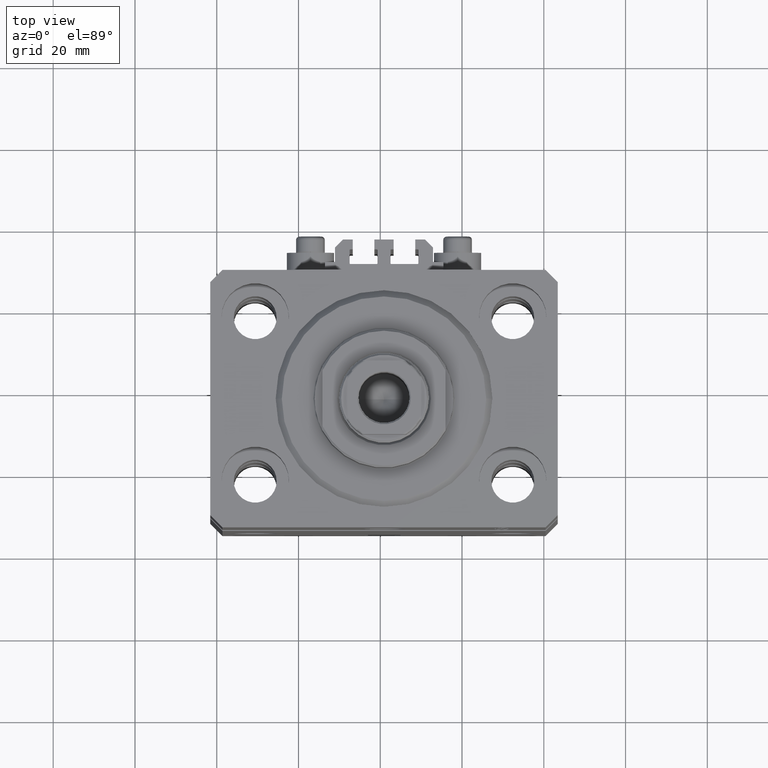
[diagram: clean part render]
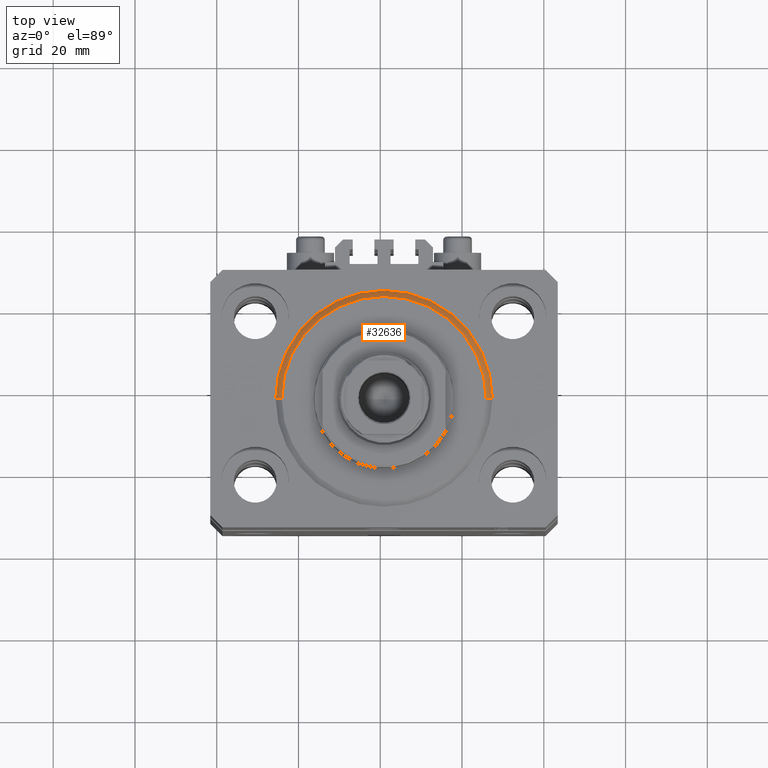
[diagram: same view with one face highlighted and labeled with its STEP entity id]
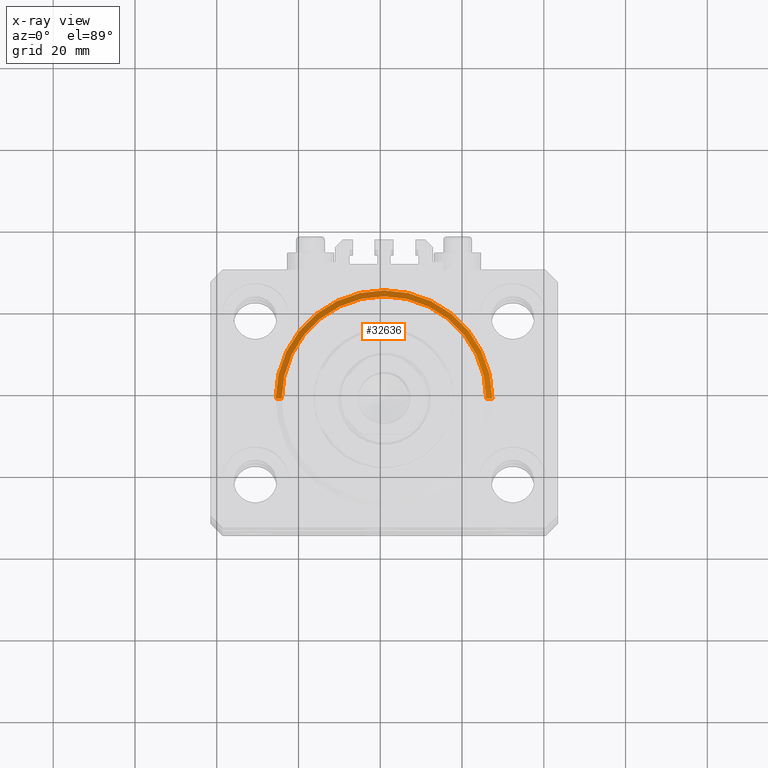
[diagram: x-ray of the same camera — body ghosted, the highlighted face saturated]
A machine part, top view. The second image highlights one B-rep face of the part: STEP entity #32636.
The next image is the same camera in x-ray: the body ghosted, the highlighted face saturated — about 0% of this face is hidden behind the body in this view.
In plain terms, the highlighted conical surface has half-angle 45 deg.
Its self-contained STEP definition (entity closure, byte-faithful):
#89 = CARTESIAN_POINT ( 'NONE',  ( 26.50000000000000355, 0.000000000000000000, 1.500000000000018652 ) ) ;
#881 = ORIENTED_EDGE ( 'NONE', *, *, #36087, .F. ) ;
#2096 = DIRECTION ( 'NONE',  ( 1.000000000000000000, 0.000000000000000000, 0.000000000000000000 ) ) ;
#2946 = AXIS2_PLACEMENT_3D ( 'NONE', #12922, #5546, #2096 ) ;
#3824 = ORIENTED_EDGE ( 'NONE', *, *, #11839, .F. ) ;
#3941 = CARTESIAN_POINT ( 'NONE',  ( -26.50000000000000355, 3.245314017740486554E-15, 1.500000000000018652 ) ) ;
#5546 = DIRECTION ( 'NONE',  ( -0.000000000000000000, -0.000000000000000000, 1.000000000000000000 ) ) ;
#6875 = DIRECTION ( 'NONE',  ( -0.000000000000000000, -0.000000000000000000, -1.000000000000000000 ) ) ;
#7454 = LINE ( 'NONE', #89, #16838 ) ;
#7533 = EDGE_LOOP ( 'NONE', ( #26176, #9174, #881, #3824 ) ) ;
#9174 = ORIENTED_EDGE ( 'NONE', *, *, #36737, .T. ) ;
#9203 = CARTESIAN_POINT ( 'NONE',  ( 24.99999999999998224, 0.000000000000000000, 0.000000000000000000 ) ) ;
#9299 = CARTESIAN_POINT ( 'NONE',  ( -24.99999999999998224, 3.153465507804433615E-15, 0.000000000000000000 ) ) ;
#11839 = EDGE_CURVE ( 'NONE', #44023, #39242, #7454, .T. ) ;
#12922 = CARTESIAN_POINT ( 'NONE',  ( 0.000000000000000000, 0.000000000000000000, 1.500000000000018652 ) ) ;
#16838 = VECTOR ( 'NONE', #45081, 1000.000000000000000 ) ;
#17936 = CARTESIAN_POINT ( 'NONE',  ( 0.000000000000000000, 0.000000000000000000, 0.000000000000000000 ) ) ;
#20233 = EDGE_CURVE ( 'NONE', #21549, #44023, #31946, .T. ) ;
#20696 = CARTESIAN_POINT ( 'NONE',  ( 26.50000000000000355, 3.245314017740486554E-15, 1.500000000000018652 ) ) ;
#20738 = FACE_OUTER_BOUND ( 'NONE', #7533, .T. ) ;
#21549 = VERTEX_POINT ( 'NONE', #9299 ) ;
#23677 = CONICAL_SURFACE ( 'NONE', #46492, 26.50000000000000355, 0.7853981633974495002 ) ;
#25339 = DIRECTION ( 'NONE',  ( -0.7071067811865483499, 8.659560562354942719E-17, 0.7071067811865466846 ) ) ;
#25733 = CIRCLE ( 'NONE', #2946, 26.50000000000000355 ) ;
#26176 = ORIENTED_EDGE ( 'NONE', *, *, #20233, .F. ) ;
#31946 = CIRCLE ( 'NONE', #44499, 24.99999999999998224 ) ;
#32636 = ADVANCED_FACE ( 'NONE', ( #20738 ), #23677, .T. ) ;
#33489 = CARTESIAN_POINT ( 'NONE',  ( -26.50000000000000355, 0.000000000000000000, 1.500000000000018652 ) ) ;
#33805 = VERTEX_POINT ( 'NONE', #33489 ) ;
#35212 = VECTOR ( 'NONE', #25339, 1000.000000000000000 ) ;
#36087 = EDGE_CURVE ( 'NONE', #39242, #33805, #25733, .T. ) ;
#36737 = EDGE_CURVE ( 'NONE', #21549, #33805, #37638, .T. ) ;
#37638 = LINE ( 'NONE', #3941, #35212 ) ;
#39242 = VERTEX_POINT ( 'NONE', #20696 ) ;
#39925 = DIRECTION ( 'NONE',  ( -0.000000000000000000, -0.000000000000000000, 1.000000000000000000 ) ) ;
#40419 = DIRECTION ( 'NONE',  ( 1.000000000000000000, 0.000000000000000000, 0.000000000000000000 ) ) ;
#43371 = CARTESIAN_POINT ( 'NONE',  ( 0.000000000000000000, 0.000000000000000000, 1.500000000000018652 ) ) ;
#44023 = VERTEX_POINT ( 'NONE', #9203 ) ;
#44255 = DIRECTION ( 'NONE',  ( 1.000000000000000000, 0.000000000000000000, 0.000000000000000000 ) ) ;
#44499 = AXIS2_PLACEMENT_3D ( 'NONE', #17936, #6875, #44255 ) ;
#45081 = DIRECTION ( 'NONE',  ( 0.7071067811865483499, 0.000000000000000000, 0.7071067811865466846 ) ) ;
#46492 = AXIS2_PLACEMENT_3D ( 'NONE', #43371, #39925, #40419 ) ;